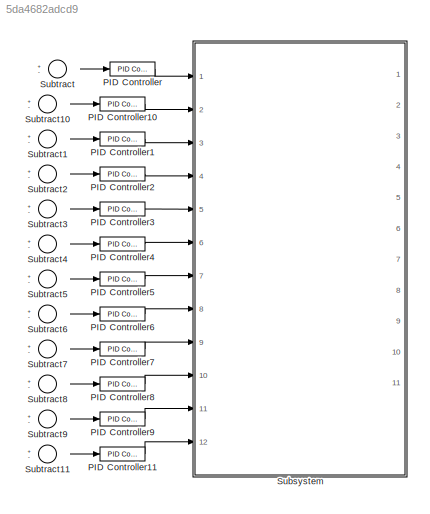
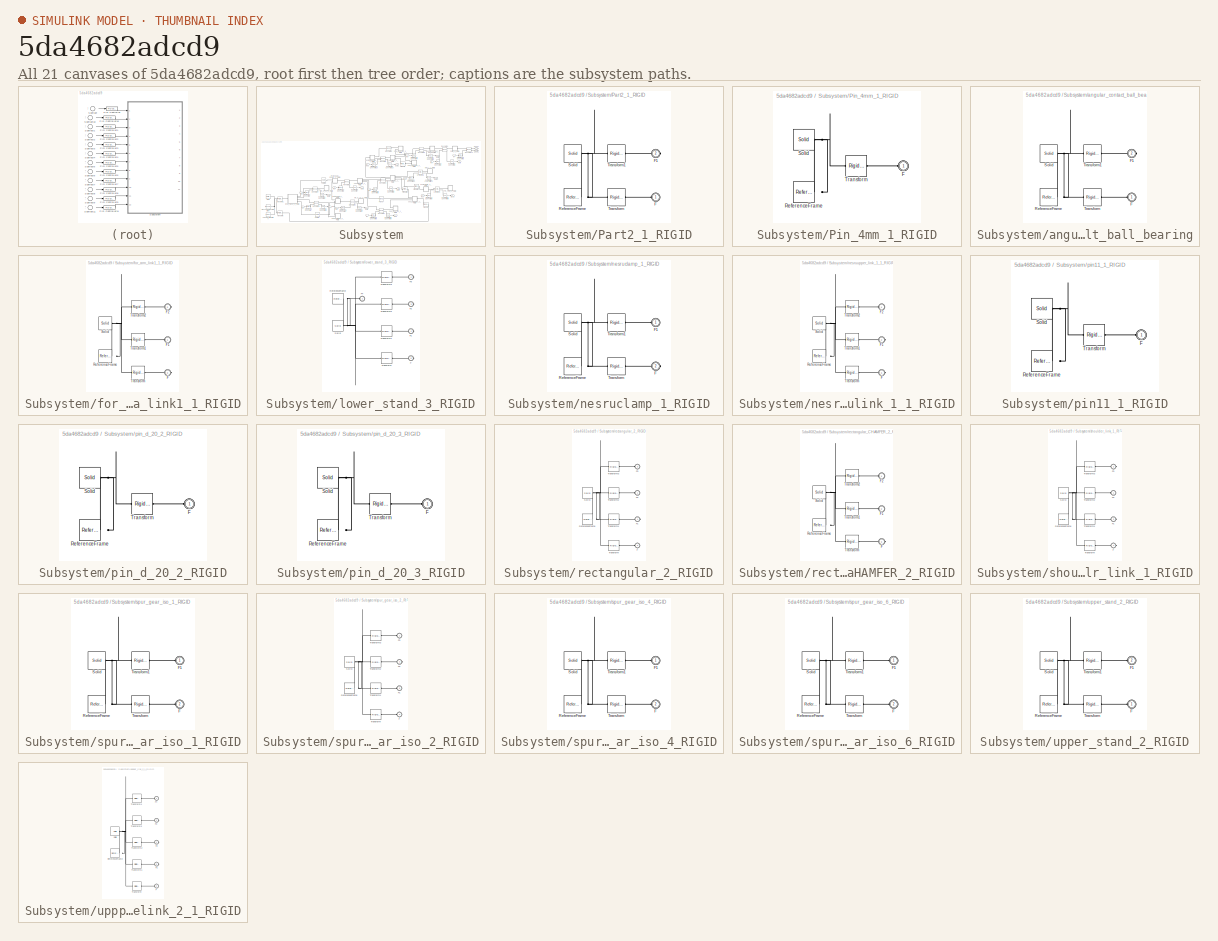
[diagram: thumbnail index - all 21 canvases of the model, root first then tree order]
MODEL slx_5da4682adcd9
KIND model
CONFIG AbsTol = auto
CONFIG FixedStep = auto
CONFIG MaxStep = auto
CONFIG MinStep = auto
CONFIG RelTol = 1e-3
CONFIG SampleTimeConstraint = Unconstrained
CONFIG Solver = ode45
CONFIG SolverMode = Auto
CONFIG SolverName = ode45
CONFIG StartTime = 0.0
CONFIG StopTime = 10.0
WORKSPACE source: external: MATLAB File  (data not in archive)
BLOCK [Reference] PID Controller  REF=simulink/Continuous/PID Controller
  Ports = [1, 1]
  SourceBlock = simulink/Continuous/PID Controller
  SourceType = PID 1dof
BLOCK [Reference] PID Controller1  REF=simulink/Continuous/PID Controller
  Ports = [1, 1]
  SourceBlock = simulink/Continuous/PID Controller
  SourceType = PID 1dof
BLOCK [Reference] PID Controller10  REF=simulink/Continuous/PID Controller
  Ports = [1, 1]
  SourceBlock = simulink/Continuous/PID Controller
  SourceType = PID 1dof
BLOCK [Reference] PID Controller11  REF=simulink/Continuous/PID Controller
  Ports = [1, 1]
  SourceBlock = simulink/Continuous/PID Controller
  SourceType = PID 1dof
BLOCK [Reference] PID Controller2  REF=simulink/Continuous/PID Controller
  Ports = [1, 1]
  SourceBlock = simulink/Continuous/PID Controller
  SourceType = PID 1dof
BLOCK [Reference] PID Controller3  REF=simulink/Continuous/PID Controller
  Ports = [1, 1]
  SourceBlock = simulink/Continuous/PID Controller
  SourceType = PID 1dof
BLOCK [Reference] PID Controller4  REF=simulink/Continuous/PID Controller
  Ports = [1, 1]
  SourceBlock = simulink/Continuous/PID Controller
  SourceType = PID 1dof
BLOCK [Reference] PID Controller5  REF=simulink/Continuous/PID Controller
  Ports = [1, 1]
  SourceBlock = simulink/Continuous/PID Controller
  SourceType = PID 1dof
BLOCK [Reference] PID Controller6  REF=simulink/Continuous/PID Controller
  Ports = [1, 1]
  SourceBlock = simulink/Continuous/PID Controller
  SourceType = PID 1dof
BLOCK [Reference] PID Controller7  REF=simulink/Continuous/PID Controller
  Ports = [1, 1]
  SourceBlock = simulink/Continuous/PID Controller
  SourceType = PID 1dof
BLOCK [Reference] PID Controller8  REF=simulink/Continuous/PID Controller
  Ports = [1, 1]
  SourceBlock = simulink/Continuous/PID Controller
  SourceType = PID 1dof
BLOCK [Reference] PID Controller9  REF=simulink/Continuous/PID Controller
  Ports = [1, 1]
  SourceBlock = simulink/Continuous/PID Controller
  SourceType = PID 1dof
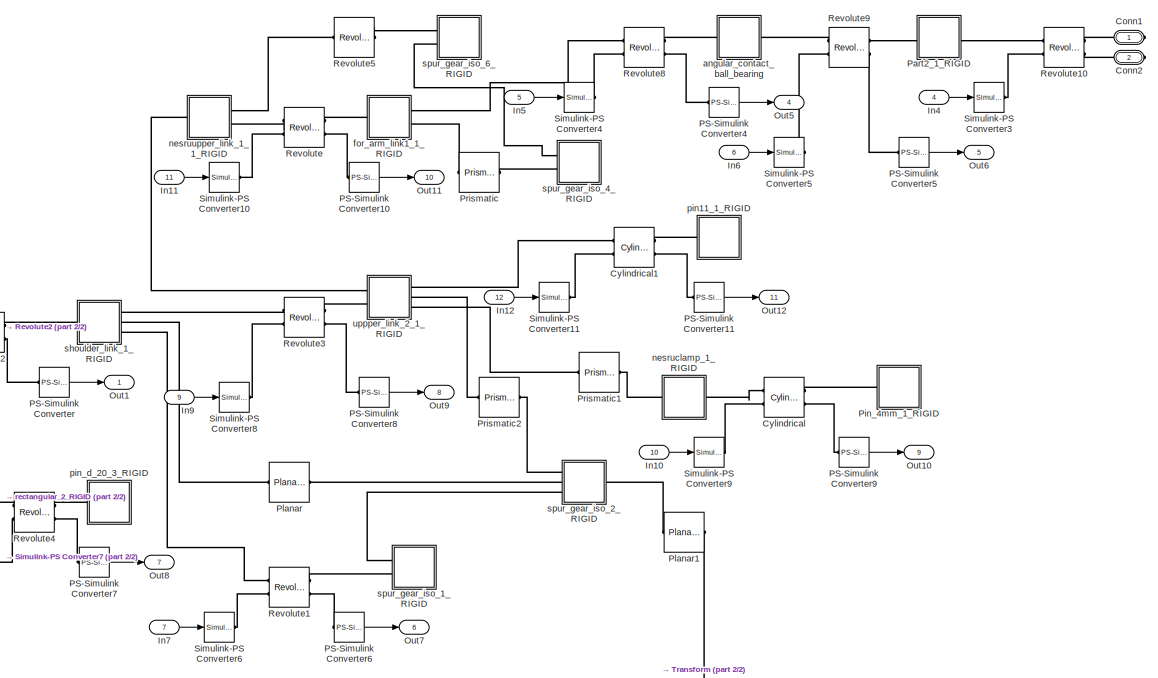
[diagram: Subsystem - part 1/2, right side, full height]
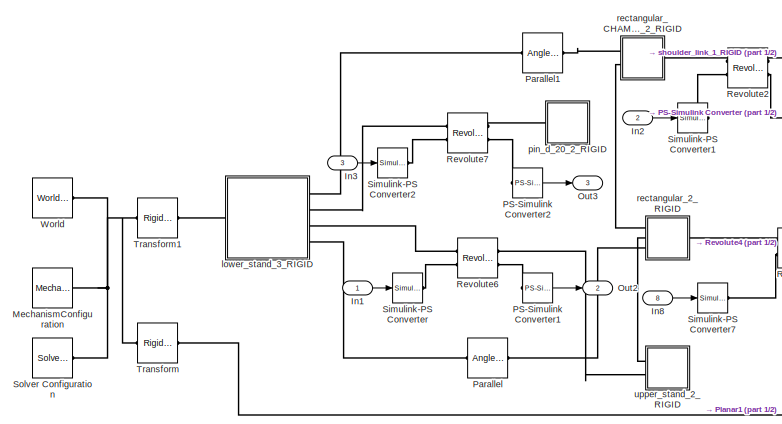
[diagram: Subsystem - part 2/2, bottom left region]
BLOCK [SubSystem] Subsystem
  Ports = [12, 11, 0, 0, 0, 0, 2]
  RequestExecContextInheritance = off
  Variant = off
BLOCK [PMIOPort] Subsystem/Conn1
  Port = 1
  Side = Right
BLOCK [PMIOPort] Subsystem/Conn2
  Port = 2
  Side = Right
BLOCK [Reference] Subsystem/Cylindrical  REF=sm_lib/Joints/Cylindrical
Joint
  Ports = [0, 0, 0, 0, 0, 2, 2]
  SourceBlock = sm_lib/Joints/Cylindrical\nJoint
  SourceType = Cylindrical\nJoint
BLOCK [Reference] Subsystem/Cylindrical1  REF=sm_lib/Joints/Cylindrical
Joint
  Ports = [0, 0, 0, 0, 0, 2, 2]
  SourceBlock = sm_lib/Joints/Cylindrical\nJoint
  SourceType = Cylindrical\nJoint
BLOCK [Inport] Subsystem/In1
  IconDisplay = Port number
BLOCK [Inport] Subsystem/In10
  IconDisplay = Port number
  Port = 10
BLOCK [Inport] Subsystem/In11
  IconDisplay = Port number
  Port = 11
BLOCK [Inport] Subsystem/In12
  IconDisplay = Port number
  Port = 12
BLOCK [Inport] Subsystem/In2
  IconDisplay = Port number
  Port = 2
BLOCK [Inport] Subsystem/In3
  IconDisplay = Port number
  Port = 3
BLOCK [Inport] Subsystem/In4
  IconDisplay = Port number
  Port = 4
BLOCK [Inport] Subsystem/In5
  IconDisplay = Port number
  Port = 5
BLOCK [Inport] Subsystem/In6
  IconDisplay = Port number
  Port = 6
BLOCK [Inport] Subsystem/In7
  IconDisplay = Port number
  Port = 7
BLOCK [Inport] Subsystem/In8
  IconDisplay = Port number
  Port = 8
BLOCK [Inport] Subsystem/In9
  IconDisplay = Port number
  Port = 9
BLOCK [Reference] Subsystem/MechanismConfiguration  REF=sm_lib/Utilities/Mechanism
Configuration
  Ports = [0, 0, 0, 0, 0, 0, 1]
  SourceBlock = sm_lib/Utilities/Mechanism\nConfiguration
  SourceType = Mechanism\nConfiguration
BLOCK [Outport] Subsystem/Out1
  IconDisplay = Port number
BLOCK [Outport] Subsystem/Out10
  IconDisplay = Port number
  Port = 9
BLOCK [Outport] Subsystem/Out11
  IconDisplay = Port number
  Port = 10
BLOCK [Outport] Subsystem/Out12
  IconDisplay = Port number
  Port = 11
BLOCK [Outport] Subsystem/Out2
  IconDisplay = Port number
  Port = 2
BLOCK [Outport] Subsystem/Out3
  IconDisplay = Port number
  Port = 3
BLOCK [Outport] Subsystem/Out5
  IconDisplay = Port number
  Port = 4
BLOCK [Outport] Subsystem/Out6
  IconDisplay = Port number
  Port = 5
BLOCK [Outport] Subsystem/Out7
  IconDisplay = Port number
  Port = 6
BLOCK [Outport] Subsystem/Out8
  IconDisplay = Port number
  Port = 7
BLOCK [Outport] Subsystem/Out9
  IconDisplay = Port number
  Port = 8
BLOCK [Reference] Subsystem/PS-Simulink Converter  REF=nesl_utility/PS-Simulink
Converter
  Ports = [0, 1, 0, 0, 0, 1]
  SourceBlock = nesl_utility/PS-Simulink\nConverter
  SourceType = PS-Simulink\nConverter
BLOCK [Reference] Subsystem/PS-Simulink Converter1  REF=nesl_utility/PS-Simulink
Converter
  Ports = [0, 1, 0, 0, 0, 1]
  SourceBlock = nesl_utility/PS-Simulink\nConverter
  SourceType = PS-Simulink\nConverter
BLOCK [Reference] Subsystem/PS-Simulink Converter10  REF=nesl_utility/PS-Simulink
Converter
  Ports = [0, 1, 0, 0, 0, 1]
  SourceBlock = nesl_utility/PS-Simulink\nConverter
  SourceType = PS-Simulink\nConverter
BLOCK [Reference] Subsystem/PS-Simulink Converter11  REF=nesl_utility/PS-Simulink
Converter
  Ports = [0, 1, 0, 0, 0, 1]
  SourceBlock = nesl_utility/PS-Simulink\nConverter
  SourceType = PS-Simulink\nConverter
BLOCK [Reference] Subsystem/PS-Simulink Converter2  REF=nesl_utility/PS-Simulink
Converter
  Ports = [0, 1, 0, 0, 0, 1]
  SourceBlock = nesl_utility/PS-Simulink\nConverter
  SourceType = PS-Simulink\nConverter
BLOCK [Reference] Subsystem/PS-Simulink Converter4  REF=nesl_utility/PS-Simulink
Converter
  Ports = [0, 1, 0, 0, 0, 1]
  SourceBlock = nesl_utility/PS-Simulink\nConverter
  SourceType = PS-Simulink\nConverter
BLOCK [Reference] Subsystem/PS-Simulink Converter5  REF=nesl_utility/PS-Simulink
Converter
  Ports = [0, 1, 0, 0, 0, 1]
  SourceBlock = nesl_utility/PS-Simulink\nConverter
  SourceType = PS-Simulink\nConverter
BLOCK [Reference] Subsystem/PS-Simulink Converter6  REF=nesl_utility/PS-Simulink
Converter
  Ports = [0, 1, 0, 0, 0, 1]
  SourceBlock = nesl_utility/PS-Simulink\nConverter
  SourceType = PS-Simulink\nConverter
BLOCK [Reference] Subsystem/PS-Simulink Converter7  REF=nesl_utility/PS-Simulink
Converter
  Ports = [0, 1, 0, 0, 0, 1]
  SourceBlock = nesl_utility/PS-Simulink\nConverter
  SourceType = PS-Simulink\nConverter
BLOCK [Reference] Subsystem/PS-Simulink Converter8  REF=nesl_utility/PS-Simulink
Converter
  Ports = [0, 1, 0, 0, 0, 1]
  SourceBlock = nesl_utility/PS-Simulink\nConverter
  SourceType = PS-Simulink\nConverter
BLOCK [Reference] Subsystem/PS-Simulink Converter9  REF=nesl_utility/PS-Simulink
Converter
  Ports = [0, 1, 0, 0, 0, 1]
  SourceBlock = nesl_utility/PS-Simulink\nConverter
  SourceType = PS-Simulink\nConverter
BLOCK [Reference] Subsystem/Parallel  REF=sm_lib/Constraints/Angle
Constraint
  Ports = [0, 0, 0, 0, 0, 1, 1]
  SourceBlock = sm_lib/Constraints/Angle\nConstraint
  SourceType = Angle\nConstraint
BLOCK [Reference] Subsystem/Parallel1  REF=sm_lib/Constraints/Angle
Constraint
  Ports = [0, 0, 0, 0, 0, 1, 1]
  SourceBlock = sm_lib/Constraints/Angle\nConstraint
  SourceType = Angle\nConstraint
BLOCK [SubSystem] Subsystem/Part2_1_RIGID
  Ports = [0, 0, 0, 0, 0, 1, 1]
  RequestExecContextInheritance = off
  Variant = off
BLOCK [PMIOPort] Subsystem/Part2_1_RIGID/F
  Port = 1
  Side = Left
BLOCK [PMIOPort] Subsystem/Part2_1_RIGID/F1
  Port = 2
  Side = Right
BLOCK [Reference] Subsystem/Part2_1_RIGID/ReferenceFrame  REF=sm_lib/Frames and
Transforms/Reference
Frame
  Ports = [0, 0, 0, 0, 0, 0, 1]
  SourceBlock = sm_lib/Frames and\nTransforms/Reference\nFrame
  SourceType = Reference\nFrame
BLOCK [Reference] Subsystem/Part2_1_RIGID/Solid  REF=sm_lib/Body Elements/Solid
  Ports = [0, 0, 0, 0, 0, 0, 1]
  SourceBlock = sm_lib/Body Elements/Solid
  SourceType = Solid
BLOCK [Reference] Subsystem/Part2_1_RIGID/Transform  REF=sm_lib/Frames and
Transforms/Rigid
Transform
  Ports = [0, 0, 0, 0, 0, 1, 1]
  SourceBlock = sm_lib/Frames and\nTransforms/Rigid\nTransform
  SourceType = Rigid\nTransform
BLOCK [Reference] Subsystem/Part2_1_RIGID/Transform1  REF=sm_lib/Frames and
Transforms/Rigid
Transform
  Ports = [0, 0, 0, 0, 0, 1, 1]
  SourceBlock = sm_lib/Frames and\nTransforms/Rigid\nTransform
  SourceType = Rigid\nTransform
BLOCK [SubSystem] Subsystem/Pin_4mm_1_RIGID
  Ports = [0, 0, 0, 0, 0, 1]
  RequestExecContextInheritance = off
  Variant = off
BLOCK [PMIOPort] Subsystem/Pin_4mm_1_RIGID/F
  Port = 1
  Side = Left
BLOCK [Reference] Subsystem/Pin_4mm_1_RIGID/ReferenceFrame  REF=sm_lib/Frames and
Transforms/Reference
Frame
  Ports = [0, 0, 0, 0, 0, 0, 1]
  SourceBlock = sm_lib/Frames and\nTransforms/Reference\nFrame
  SourceType = Reference\nFrame
BLOCK [Reference] Subsystem/Pin_4mm_1_RIGID/Solid  REF=sm_lib/Body Elements/Solid
  Ports = [0, 0, 0, 0, 0, 0, 1]
  SourceBlock = sm_lib/Body Elements/Solid
  SourceType = Solid
BLOCK [Reference] Subsystem/Pin_4mm_1_RIGID/Transform  REF=sm_lib/Frames and
Transforms/Rigid
Transform
  Ports = [0, 0, 0, 0, 0, 1, 1]
  SourceBlock = sm_lib/Frames and\nTransforms/Rigid\nTransform
  SourceType = Rigid\nTransform
BLOCK [Reference] Subsystem/Planar  REF=sm_lib/Joints/Planar Joint
  Ports = [0, 0, 0, 0, 0, 1, 1]
  SourceBlock = sm_lib/Joints/Planar Joint
  SourceType = Planar Joint
BLOCK [Reference] Subsystem/Planar1  REF=sm_lib/Joints/Planar Joint
  Ports = [0, 0, 0, 0, 0, 1, 1]
  SourceBlock = sm_lib/Joints/Planar Joint
  SourceType = Planar Joint
BLOCK [Reference] Subsystem/Prismatic  REF=sm_lib/Joints/Prismatic
Joint
  Ports = [0, 0, 0, 0, 0, 1, 1]
  SourceBlock = sm_lib/Joints/Prismatic\nJoint
  SourceType = Prismatic\nJoint
BLOCK [Reference] Subsystem/Prismatic1  REF=sm_lib/Joints/Prismatic
Joint
  Ports = [0, 0, 0, 0, 0, 1, 1]
  SourceBlock = sm_lib/Joints/Prismatic\nJoint
  SourceType = Prismatic\nJoint
BLOCK [Reference] Subsystem/Prismatic2  REF=sm_lib/Joints/Prismatic
Joint
  Ports = [0, 0, 0, 0, 0, 1, 1]
  SourceBlock = sm_lib/Joints/Prismatic\nJoint
  SourceType = Prismatic\nJoint
BLOCK [Reference] Subsystem/Revolute  REF=sm_lib/Joints/Revolute Joint
  Ports = [0, 0, 0, 0, 0, 2, 2]
  SourceBlock = sm_lib/Joints/Revolute Joint
  SourceType = Revolute Joint
BLOCK [Reference] Subsystem/Revolute1  REF=sm_lib/Joints/Revolute Joint
  Ports = [0, 0, 0, 0, 0, 2, 2]
  SourceBlock = sm_lib/Joints/Revolute Joint
  SourceType = Revolute Joint
BLOCK [Reference] Subsystem/Revolute10  REF=sm_lib/Joints/Revolute Joint
  Ports = [0, 0, 0, 0, 0, 2, 2]
  SourceBlock = sm_lib/Joints/Revolute Joint
  SourceType = Revolute Joint
BLOCK [Reference] Subsystem/Revolute2  REF=sm_lib/Joints/Revolute Joint
  Ports = [0, 0, 0, 0, 0, 2, 2]
  SourceBlock = sm_lib/Joints/Revolute Joint
  SourceType = Revolute Joint
BLOCK [Reference] Subsystem/Revolute3  REF=sm_lib/Joints/Revolute Joint
  Ports = [0, 0, 0, 0, 0, 2, 2]
  SourceBlock = sm_lib/Joints/Revolute Joint
  SourceType = Revolute Joint
BLOCK [Reference] Subsystem/Revolute4  REF=sm_lib/Joints/Revolute Joint
  Ports = [0, 0, 0, 0, 0, 2, 2]
  SourceBlock = sm_lib/Joints/Revolute Joint
  SourceType = Revolute Joint
BLOCK [Reference] Subsystem/Revolute5  REF=sm_lib/Joints/Revolute Joint
  Ports = [0, 0, 0, 0, 0, 1, 1]
  SourceBlock = sm_lib/Joints/Revolute Joint
  SourceType = Revolute Joint
BLOCK [Reference] Subsystem/Revolute6  REF=sm_lib/Joints/Revolute Joint
  Ports = [0, 0, 0, 0, 0, 2, 2]
  SourceBlock = sm_lib/Joints/Revolute Joint
  SourceType = Revolute Joint
BLOCK [Reference] Subsystem/Revolute7  REF=sm_lib/Joints/Revolute Joint
  Ports = [0, 0, 0, 0, 0, 2, 2]
  SourceBlock = sm_lib/Joints/Revolute Joint
  SourceType = Revolute Joint
BLOCK [Reference] Subsystem/Revolute8  REF=sm_lib/Joints/Revolute Joint
  Ports = [0, 0, 0, 0, 0, 2, 2]
  SourceBlock = sm_lib/Joints/Revolute Joint
  SourceType = Revolute Joint
BLOCK [Reference] Subsystem/Revolute9  REF=sm_lib/Joints/Revolute Joint
  Ports = [0, 0, 0, 0, 0, 2, 2]
  SourceBlock = sm_lib/Joints/Revolute Joint
  SourceType = Revolute Joint
BLOCK [Reference] Subsystem/Simulink-PS Converter  REF=nesl_utility/Simulink-PS
Converter
  Ports = [1, 0, 0, 0, 0, 0, 1]
  SourceBlock = nesl_utility/Simulink-PS\nConverter
  SourceType = Simulink-PS\nConverter
BLOCK [Reference] Subsystem/Simulink-PS Converter1  REF=nesl_utility/Simulink-PS
Converter
  Ports = [1, 0, 0, 0, 0, 0, 1]
  SourceBlock = nesl_utility/Simulink-PS\nConverter
  SourceType = Simulink-PS\nConverter
BLOCK [Reference] Subsystem/Simulink-PS Converter10  REF=nesl_utility/Simulink-PS
Converter
  Ports = [1, 0, 0, 0, 0, 0, 1]
  SourceBlock = nesl_utility/Simulink-PS\nConverter
  SourceType = Simulink-PS\nConverter
BLOCK [Reference] Subsystem/Simulink-PS Converter11  REF=nesl_utility/Simulink-PS
Converter
  Ports = [1, 0, 0, 0, 0, 0, 1]
  SourceBlock = nesl_utility/Simulink-PS\nConverter
  SourceType = Simulink-PS\nConverter
BLOCK [Reference] Subsystem/Simulink-PS Converter2  REF=nesl_utility/Simulink-PS
Converter
  Ports = [1, 0, 0, 0, 0, 0, 1]
  SourceBlock = nesl_utility/Simulink-PS\nConverter
  SourceType = Simulink-PS\nConverter
BLOCK [Reference] Subsystem/Simulink-PS Converter3  REF=nesl_utility/Simulink-PS
Converter
  Ports = [1, 0, 0, 0, 0, 0, 1]
  SourceBlock = nesl_utility/Simulink-PS\nConverter
  SourceType = Simulink-PS\nConverter
BLOCK [Reference] Subsystem/Simulink-PS Converter4  REF=nesl_utility/Simulink-PS
Converter
  Ports = [1, 0, 0, 0, 0, 0, 1]
  SourceBlock = nesl_utility/Simulink-PS\nConverter
  SourceType = Simulink-PS\nConverter
BLOCK [Reference] Subsystem/Simulink-PS Converter5  REF=nesl_utility/Simulink-PS
Converter
  Ports = [1, 0, 0, 0, 0, 0, 1]
  SourceBlock = nesl_utility/Simulink-PS\nConverter
  SourceType = Simulink-PS\nConverter
BLOCK [Reference] Subsystem/Simulink-PS Converter6  REF=nesl_utility/Simulink-PS
Converter
  Ports = [1, 0, 0, 0, 0, 0, 1]
  SourceBlock = nesl_utility/Simulink-PS\nConverter
  SourceType = Simulink-PS\nConverter
BLOCK [Reference] Subsystem/Simulink-PS Converter7  REF=nesl_utility/Simulink-PS
Converter
  Ports = [1, 0, 0, 0, 0, 0, 1]
  SourceBlock = nesl_utility/Simulink-PS\nConverter
  SourceType = Simulink-PS\nConverter
BLOCK [Reference] Subsystem/Simulink-PS Converter8  REF=nesl_utility/Simulink-PS
Converter
  Ports = [1, 0, 0, 0, 0, 0, 1]
  SourceBlock = nesl_utility/Simulink-PS\nConverter
  SourceType = Simulink-PS\nConverter
BLOCK [Reference] Subsystem/Simulink-PS Converter9  REF=nesl_utility/Simulink-PS
Converter
  Ports = [1, 0, 0, 0, 0, 0, 1]
  SourceBlock = nesl_utility/Simulink-PS\nConverter
  SourceType = Simulink-PS\nConverter
BLOCK [Reference] Subsystem/Solver Configuration  REF=nesl_utility/Solver
Configuration
  Ports = [0, 0, 0, 0, 0, 0, 1]
  SourceBlock = nesl_utility/Solver\nConfiguration
  SourceType = Solver\nConfiguration
BLOCK [Reference] Subsystem/Transform  REF=sm_lib/Frames and
Transforms/Rigid
Transform
  Ports = [0, 0, 0, 0, 0, 1, 1]
  SourceBlock = sm_lib/Frames and\nTransforms/Rigid\nTransform
  SourceType = Rigid\nTransform
BLOCK [Reference] Subsystem/Transform1  REF=sm_lib/Frames and
Transforms/Rigid
Transform
  Ports = [0, 0, 0, 0, 0, 1, 1]
  SourceBlock = sm_lib/Frames and\nTransforms/Rigid\nTransform
  SourceType = Rigid\nTransform
BLOCK [Reference] Subsystem/World  REF=sm_lib/Frames and
Transforms/World Frame
  Ports = [0, 0, 0, 0, 0, 0, 1]
  SourceBlock = sm_lib/Frames and\nTransforms/World Frame
  SourceType = World Frame
BLOCK [SubSystem] Subsystem/angular_contact_ball_bearing
  Ports = [0, 0, 0, 0, 0, 1, 1]
  RequestExecContextInheritance = off
  Variant = off
BLOCK [PMIOPort] Subsystem/angular_contact_ball_bearing/F
  Port = 1
  Side = Left
BLOCK [PMIOPort] Subsystem/angular_contact_ball_bearing/F1
  Port = 2
  Side = Right
BLOCK [Reference] Subsystem/angular_contact_ball_bearing/ReferenceFrame  REF=sm_lib/Frames and
Transforms/Reference
Frame
  Ports = [0, 0, 0, 0, 0, 0, 1]
  SourceBlock = sm_lib/Frames and\nTransforms/Reference\nFrame
  SourceType = Reference\nFrame
BLOCK [Reference] Subsystem/angular_contact_ball_bearing/Solid  REF=sm_lib/Body Elements/Solid
  Ports = [0, 0, 0, 0, 0, 0, 1]
  SourceBlock = sm_lib/Body Elements/Solid
  SourceType = Solid
BLOCK [Reference] Subsystem/angular_contact_ball_bearing/Transform  REF=sm_lib/Frames and
Transforms/Rigid
Transform
  Ports = [0, 0, 0, 0, 0, 1, 1]
  SourceBlock = sm_lib/Frames and\nTransforms/Rigid\nTransform
  SourceType = Rigid\nTransform
BLOCK [Reference] Subsystem/angular_contact_ball_bearing/Transform1  REF=sm_lib/Frames and
Transforms/Rigid
Transform
  Ports = [0, 0, 0, 0, 0, 1, 1]
  SourceBlock = sm_lib/Frames and\nTransforms/Rigid\nTransform
  SourceType = Rigid\nTransform
BLOCK [SubSystem] Subsystem/for_arm_link1_1_RIGID
  Ports = [0, 0, 0, 0, 0, 1, 2]
  RequestExecContextInheritance = off
  Variant = off
BLOCK [PMIOPort] Subsystem/for_arm_link1_1_RIGID/F
  Port = 3
  Side = Right
BLOCK [PMIOPort] Subsystem/for_arm_link1_1_RIGID/F1
  Port = 1
  Side = Left
BLOCK [PMIOPort] Subsystem/for_arm_link1_1_RIGID/F2
  Port = 2
  Side = Right
BLOCK [Reference] Subsystem/for_arm_link1_1_RIGID/ReferenceFrame  REF=sm_lib/Frames and
Transforms/Reference
Frame
  Ports = [0, 0, 0, 0, 0, 0, 1]
  SourceBlock = sm_lib/Frames and\nTransforms/Reference\nFrame
  SourceType = Reference\nFrame
BLOCK [Reference] Subsystem/for_arm_link1_1_RIGID/Solid  REF=sm_lib/Body Elements/Solid
  Ports = [0, 0, 0, 0, 0, 0, 1]
  SourceBlock = sm_lib/Body Elements/Solid
  SourceType = Solid
BLOCK [Reference] Subsystem/for_arm_link1_1_RIGID/Transform  REF=sm_lib/Frames and
Transforms/Rigid
Transform
  Ports = [0, 0, 0, 0, 0, 1, 1]
  SourceBlock = sm_lib/Frames and\nTransforms/Rigid\nTransform
  SourceType = Rigid\nTransform
BLOCK [Reference] Subsystem/for_arm_link1_1_RIGID/Transform1  REF=sm_lib/Frames and
Transforms/Rigid
Transform
  Ports = [0, 0, 0, 0, 0, 1, 1]
  SourceBlock = sm_lib/Frames and\nTransforms/Rigid\nTransform
  SourceType = Rigid\nTransform
BLOCK [Reference] Subsystem/for_arm_link1_1_RIGID/Transform2  REF=sm_lib/Frames and
Transforms/Rigid
Transform
  Ports = [0, 0, 0, 0, 0, 1, 1]
  SourceBlock = sm_lib/Frames and\nTransforms/Rigid\nTransform
  SourceType = Rigid\nTransform
BLOCK [SubSystem] Subsystem/lower_stand_3_RIGID
  Ports = [0, 0, 0, 0, 0, 1, 4]
  RequestExecContextInheritance = off
  Variant = off
BLOCK [PMIOPort] Subsystem/lower_stand_3_RIGID/F
  Port = 5
  Side = Right
BLOCK [PMIOPort] Subsystem/lower_stand_3_RIGID/F1
  Port = 4
  Side = Right
BLOCK [PMIOPort] Subsystem/lower_stand_3_RIGID/F2
  Port = 3
  Side = Right
BLOCK [PMIOPort] Subsystem/lower_stand_3_RIGID/F3
  Port = 2
  Side = Right
BLOCK [PMIOPort] Subsystem/lower_stand_3_RIGID/F4
  Port = 1
  Side = Left
BLOCK [Reference] Subsystem/lower_stand_3_RIGID/ReferenceFrame  REF=sm_lib/Frames and
Transforms/Reference
Frame
  Ports = [0, 0, 0, 0, 0, 0, 1]
  SourceBlock = sm_lib/Frames and\nTransforms/Reference\nFrame
  SourceType = Reference\nFrame
BLOCK [Reference] Subsystem/lower_stand_3_RIGID/Solid  REF=sm_lib/Body Elements/Solid
  Ports = [0, 0, 0, 0, 0, 0, 1]
  SourceBlock = sm_lib/Body Elements/Solid
  SourceType = Solid
BLOCK [Reference] Subsystem/lower_stand_3_RIGID/Transform  REF=sm_lib/Frames and
Transforms/Rigid
Transform
  Ports = [0, 0, 0, 0, 0, 1, 1]
  SourceBlock = sm_lib/Frames and\nTransforms/Rigid\nTransform
  SourceType = Rigid\nTransform
BLOCK [Reference] Subsystem/lower_stand_3_RIGID/Transform1  REF=sm_lib/Frames and
Transforms/Rigid
Transform
  Ports = [0, 0, 0, 0, 0, 1, 1]
  SourceBlock = sm_lib/Frames and\nTransforms/Rigid\nTransform
  SourceType = Rigid\nTransform
BLOCK [Reference] Subsystem/lower_stand_3_RIGID/Transform2  REF=sm_lib/Frames and
Transforms/Rigid
Transform
  Ports = [0, 0, 0, 0, 0, 1, 1]
  SourceBlock = sm_lib/Frames and\nTransforms/Rigid\nTransform
  SourceType = Rigid\nTransform
BLOCK [Reference] Subsystem/lower_stand_3_RIGID/Transform3  REF=sm_lib/Frames and
Transforms/Rigid
Transform
  Ports = [0, 0, 0, 0, 0, 1, 1]
  SourceBlock = sm_lib/Frames and\nTransforms/Rigid\nTransform
  SourceType = Rigid\nTransform
BLOCK [SubSystem] Subsystem/nesruclamp_1_RIGID
  Ports = [0, 0, 0, 0, 0, 1, 1]
  RequestExecContextInheritance = off
  Variant = off
BLOCK [PMIOPort] Subsystem/nesruclamp_1_RIGID/F
  Port = 2
  Side = Right
BLOCK [PMIOPort] Subsystem/nesruclamp_1_RIGID/F1
  Port = 1
  Side = Left
BLOCK [Reference] Subsystem/nesruclamp_1_RIGID/ReferenceFrame  REF=sm_lib/Frames and
Transforms/Reference
Frame
  Ports = [0, 0, 0, 0, 0, 0, 1]
  SourceBlock = sm_lib/Frames and\nTransforms/Reference\nFrame
  SourceType = Reference\nFrame
BLOCK [Reference] Subsystem/nesruclamp_1_RIGID/Solid  REF=sm_lib/Body Elements/Solid
  Ports = [0, 0, 0, 0, 0, 0, 1]
  SourceBlock = sm_lib/Body Elements/Solid
  SourceType = Solid
BLOCK [Reference] Subsystem/nesruclamp_1_RIGID/Transform  REF=sm_lib/Frames and
Transforms/Rigid
Transform
  Ports = [0, 0, 0, 0, 0, 1, 1]
  SourceBlock = sm_lib/Frames and\nTransforms/Rigid\nTransform
  SourceType = Rigid\nTransform
BLOCK [Reference] Subsystem/nesruclamp_1_RIGID/Transform1  REF=sm_lib/Frames and
Transforms/Rigid
Transform
  Ports = [0, 0, 0, 0, 0, 1, 1]
  SourceBlock = sm_lib/Frames and\nTransforms/Rigid\nTransform
  SourceType = Rigid\nTransform
BLOCK [SubSystem] Subsystem/nesruupper_link_1_1_RIGID
  Ports = [0, 0, 0, 0, 0, 1, 2]
  RequestExecContextInheritance = off
  Variant = off
BLOCK [PMIOPort] Subsystem/nesruupper_link_1_1_RIGID/F
  Port = 3
  Side = Right
BLOCK [PMIOPort] Subsystem/nesruupper_link_1_1_RIGID/F1
  Port = 2
  Side = Right
BLOCK [PMIOPort] Subsystem/nesruupper_link_1_1_RIGID/F2
  Port = 1
  Side = Left
BLOCK [Reference] Subsystem/nesruupper_link_1_1_RIGID/ReferenceFrame  REF=sm_lib/Frames and
Transforms/Reference
Frame
  Ports = [0, 0, 0, 0, 0, 0, 1]
  SourceBlock = sm_lib/Frames and\nTransforms/Reference\nFrame
  SourceType = Reference\nFrame
BLOCK [Reference] Subsystem/nesruupper_link_1_1_RIGID/Solid  REF=sm_lib/Body Elements/Solid
  Ports = [0, 0, 0, 0, 0, 0, 1]
  SourceBlock = sm_lib/Body Elements/Solid
  SourceType = Solid
BLOCK [Reference] Subsystem/nesruupper_link_1_1_RIGID/Transform  REF=sm_lib/Frames and
Transforms/Rigid
Transform
  Ports = [0, 0, 0, 0, 0, 1, 1]
  SourceBlock = sm_lib/Frames and\nTransforms/Rigid\nTransform
  SourceType = Rigid\nTransform
BLOCK [Reference] Subsystem/nesruupper_link_1_1_RIGID/Transform1  REF=sm_lib/Frames and
Transforms/Rigid
Transform
  Ports = [0, 0, 0, 0, 0, 1, 1]
  SourceBlock = sm_lib/Frames and\nTransforms/Rigid\nTransform
  SourceType = Rigid\nTransform
BLOCK [Reference] Subsystem/nesruupper_link_1_1_RIGID/Transform2  REF=sm_lib/Frames and
Transforms/Rigid
Transform
  Ports = [0, 0, 0, 0, 0, 1, 1]
  SourceBlock = sm_lib/Frames and\nTransforms/Rigid\nTransform
  SourceType = Rigid\nTransform
BLOCK [SubSystem] Subsystem/pin11_1_RIGID
  Ports = [0, 0, 0, 0, 0, 1]
  RequestExecContextInheritance = off
  Variant = off
BLOCK [PMIOPort] Subsystem/pin11_1_RIGID/F
  Port = 1
  Side = Left
BLOCK [Reference] Subsystem/pin11_1_RIGID/ReferenceFrame  REF=sm_lib/Frames and
Transforms/Reference
Frame
  Ports = [0, 0, 0, 0, 0, 0, 1]
  SourceBlock = sm_lib/Frames and\nTransforms/Reference\nFrame
  SourceType = Reference\nFrame
BLOCK [Reference] Subsystem/pin11_1_RIGID/Solid  REF=sm_lib/Body Elements/Solid
  Ports = [0, 0, 0, 0, 0, 0, 1]
  SourceBlock = sm_lib/Body Elements/Solid
  SourceType = Solid
BLOCK [Reference] Subsystem/pin11_1_RIGID/Transform  REF=sm_lib/Frames and
Transforms/Rigid
Transform
  Ports = [0, 0, 0, 0, 0, 1, 1]
  SourceBlock = sm_lib/Frames and\nTransforms/Rigid\nTransform
  SourceType = Rigid\nTransform
BLOCK [SubSystem] Subsystem/pin_d_20_2_RIGID
  Ports = [0, 0, 0, 0, 0, 1]
  RequestExecContextInheritance = off
  Variant = off
BLOCK [PMIOPort] Subsystem/pin_d_20_2_RIGID/F
  Port = 1
  Side = Left
BLOCK [Reference] Subsystem/pin_d_20_2_RIGID/ReferenceFrame  REF=sm_lib/Frames and
Transforms/Reference
Frame
  Ports = [0, 0, 0, 0, 0, 0, 1]
  SourceBlock = sm_lib/Frames and\nTransforms/Reference\nFrame
  SourceType = Reference\nFrame
BLOCK [Reference] Subsystem/pin_d_20_2_RIGID/Solid  REF=sm_lib/Body Elements/Solid
  Ports = [0, 0, 0, 0, 0, 0, 1]
  SourceBlock = sm_lib/Body Elements/Solid
  SourceType = Solid
BLOCK [Reference] Subsystem/pin_d_20_2_RIGID/Transform  REF=sm_lib/Frames and
Transforms/Rigid
Transform
  Ports = [0, 0, 0, 0, 0, 1, 1]
  SourceBlock = sm_lib/Frames and\nTransforms/Rigid\nTransform
  SourceType = Rigid\nTransform
BLOCK [SubSystem] Subsystem/pin_d_20_3_RIGID
  Ports = [0, 0, 0, 0, 0, 1]
  RequestExecContextInheritance = off
  Variant = off
BLOCK [PMIOPort] Subsystem/pin_d_20_3_RIGID/F
  Port = 1
  Side = Left
BLOCK [Reference] Subsystem/pin_d_20_3_RIGID/ReferenceFrame  REF=sm_lib/Frames and
Transforms/Reference
Frame
  Ports = [0, 0, 0, 0, 0, 0, 1]
  SourceBlock = sm_lib/Frames and\nTransforms/Reference\nFrame
  SourceType = Reference\nFrame
BLOCK [Reference] Subsystem/pin_d_20_3_RIGID/Solid  REF=sm_lib/Body Elements/Solid
  Ports = [0, 0, 0, 0, 0, 0, 1]
  SourceBlock = sm_lib/Body Elements/Solid
  SourceType = Solid
BLOCK [Reference] Subsystem/pin_d_20_3_RIGID/Transform  REF=sm_lib/Frames and
Transforms/Rigid
Transform
  Ports = [0, 0, 0, 0, 0, 1, 1]
  SourceBlock = sm_lib/Frames and\nTransforms/Rigid\nTransform
  SourceType = Rigid\nTransform
BLOCK [SubSystem] Subsystem/rectangular_2_RIGID
  Ports = [0, 0, 0, 0, 0, 3, 1]
  RequestExecContextInheritance = off
  Variant = off
BLOCK [PMIOPort] Subsystem/rectangular_2_RIGID/F
  Port = 2
  Side = Left
BLOCK [PMIOPort] Subsystem/rectangular_2_RIGID/F1
  Port = 4
  Side = Right
BLOCK [PMIOPort] Subsystem/rectangular_2_RIGID/F2
  Port = 1
  Side = Left
BLOCK [PMIOPort] Subsystem/rectangular_2_RIGID/F3
  Port = 3
  Side = Left
BLOCK [Reference] Subsystem/rectangular_2_RIGID/ReferenceFrame  REF=sm_lib/Frames and
Transforms/Reference
Frame
  Ports = [0, 0, 0, 0, 0, 0, 1]
  SourceBlock = sm_lib/Frames and\nTransforms/Reference\nFrame
  SourceType = Reference\nFrame
BLOCK [Reference] Subsystem/rectangular_2_RIGID/Solid  REF=sm_lib/Body Elements/Solid
  Ports = [0, 0, 0, 0, 0, 0, 1]
  SourceBlock = sm_lib/Body Elements/Solid
  SourceType = Solid
BLOCK [Reference] Subsystem/rectangular_2_RIGID/Transform  REF=sm_lib/Frames and
Transforms/Rigid
Transform
  Ports = [0, 0, 0, 0, 0, 1, 1]
  SourceBlock = sm_lib/Frames and\nTransforms/Rigid\nTransform
  SourceType = Rigid\nTransform
BLOCK [Reference] Subsystem/rectangular_2_RIGID/Transform1  REF=sm_lib/Frames and
Transforms/Rigid
Transform
  Ports = [0, 0, 0, 0, 0, 1, 1]
  SourceBlock = sm_lib/Frames and\nTransforms/Rigid\nTransform
  SourceType = Rigid\nTransform
BLOCK [Reference] Subsystem/rectangular_2_RIGID/Transform2  REF=sm_lib/Frames and
Transforms/Rigid
Transform
  Ports = [0, 0, 0, 0, 0, 1, 1]
  SourceBlock = sm_lib/Frames and\nTransforms/Rigid\nTransform
  SourceType = Rigid\nTransform
BLOCK [Reference] Subsystem/rectangular_2_RIGID/Transform3  REF=sm_lib/Frames and
Transforms/Rigid
Transform
  Ports = [0, 0, 0, 0, 0, 1, 1]
  SourceBlock = sm_lib/Frames and\nTransforms/Rigid\nTransform
  SourceType = Rigid\nTransform
BLOCK [SubSystem] Subsystem/rectangular_CHAMFER_2_RIGID
  Ports = [0, 0, 0, 0, 0, 2, 1]
  RequestExecContextInheritance = off
  Variant = off
BLOCK [PMIOPort] Subsystem/rectangular_CHAMFER_2_RIGID/F
  Port = 3
  Side = Right
BLOCK [PMIOPort] Subsystem/rectangular_CHAMFER_2_RIGID/F1
  Port = 2
  Side = Left
BLOCK [PMIOPort] Subsystem/rectangular_CHAMFER_2_RIGID/F2
  Port = 1
  Side = Left
BLOCK [Reference] Subsystem/rectangular_CHAMFER_2_RIGID/ReferenceFrame  REF=sm_lib/Frames and
Transforms/Reference
Frame
  Ports = [0, 0, 0, 0, 0, 0, 1]
  SourceBlock = sm_lib/Frames and\nTransforms/Reference\nFrame
  SourceType = Reference\nFrame
BLOCK [Reference] Subsystem/rectangular_CHAMFER_2_RIGID/Solid  REF=sm_lib/Body Elements/Solid
  Ports = [0, 0, 0, 0, 0, 0, 1]
  SourceBlock = sm_lib/Body Elements/Solid
  SourceType = Solid
BLOCK [Reference] Subsystem/rectangular_CHAMFER_2_RIGID/Transform  REF=sm_lib/Frames and
Transforms/Rigid
Transform
  Ports = [0, 0, 0, 0, 0, 1, 1]
  SourceBlock = sm_lib/Frames and\nTransforms/Rigid\nTransform
  SourceType = Rigid\nTransform
BLOCK [Reference] Subsystem/rectangular_CHAMFER_2_RIGID/Transform1  REF=sm_lib/Frames and
Transforms/Rigid
Transform
  Ports = [0, 0, 0, 0, 0, 1, 1]
  SourceBlock = sm_lib/Frames and\nTransforms/Rigid\nTransform
  SourceType = Rigid\nTransform
BLOCK [Reference] Subsystem/rectangular_CHAMFER_2_RIGID/Transform2  REF=sm_lib/Frames and
Transforms/Rigid
Transform
  Ports = [0, 0, 0, 0, 0, 1, 1]
  SourceBlock = sm_lib/Frames and\nTransforms/Rigid\nTransform
  SourceType = Rigid\nTransform
BLOCK [SubSystem] Subsystem/shoulder_link_1_RIGID
  Ports = [0, 0, 0, 0, 0, 1, 3]
  RequestExecContextInheritance = off
  Variant = off
BLOCK [PMIOPort] Subsystem/shoulder_link_1_RIGID/F
  Port = 4
  Side = Right
BLOCK [PMIOPort] Subsystem/shoulder_link_1_RIGID/F1
  Port = 3
  Side = Right
BLOCK [PMIOPort] Subsystem/shoulder_link_1_RIGID/F2
  Port = 1
  Side = Left
BLOCK [PMIOPort] Subsystem/shoulder_link_1_RIGID/F3
  Port = 2
  Side = Right
BLOCK [Reference] Subsystem/shoulder_link_1_RIGID/ReferenceFrame  REF=sm_lib/Frames and
Transforms/Reference
Frame
  Ports = [0, 0, 0, 0, 0, 0, 1]
  SourceBlock = sm_lib/Frames and\nTransforms/Reference\nFrame
  SourceType = Reference\nFrame
BLOCK [Reference] Subsystem/shoulder_link_1_RIGID/Solid  REF=sm_lib/Body Elements/Solid
  Ports = [0, 0, 0, 0, 0, 0, 1]
  SourceBlock = sm_lib/Body Elements/Solid
  SourceType = Solid
BLOCK [Reference] Subsystem/shoulder_link_1_RIGID/Transform  REF=sm_lib/Frames and
Transforms/Rigid
Transform
  Ports = [0, 0, 0, 0, 0, 1, 1]
  SourceBlock = sm_lib/Frames and\nTransforms/Rigid\nTransform
  SourceType = Rigid\nTransform
BLOCK [Reference] Subsystem/shoulder_link_1_RIGID/Transform1  REF=sm_lib/Frames and
Transforms/Rigid
Transform
  Ports = [0, 0, 0, 0, 0, 1, 1]
  SourceBlock = sm_lib/Frames and\nTransforms/Rigid\nTransform
  SourceType = Rigid\nTransform
BLOCK [Reference] Subsystem/shoulder_link_1_RIGID/Transform2  REF=sm_lib/Frames and
Transforms/Rigid
Transform
  Ports = [0, 0, 0, 0, 0, 1, 1]
  SourceBlock = sm_lib/Frames and\nTransforms/Rigid\nTransform
  SourceType = Rigid\nTransform
BLOCK [Reference] Subsystem/shoulder_link_1_RIGID/Transform3  REF=sm_lib/Frames and
Transforms/Rigid
Transform
  Ports = [0, 0, 0, 0, 0, 1, 1]
  SourceBlock = sm_lib/Frames and\nTransforms/Rigid\nTransform
  SourceType = Rigid\nTransform
BLOCK [SubSystem] Subsystem/spur_gear_iso_1_RIGID
  Ports = [0, 0, 0, 0, 0, 2]
  RequestExecContextInheritance = off
  Variant = off
BLOCK [PMIOPort] Subsystem/spur_gear_iso_1_RIGID/F
  Port = 2
  Side = Left
BLOCK [PMIOPort] Subsystem/spur_gear_iso_1_RIGID/F1
  Port = 1
  Side = Left
BLOCK [Reference] Subsystem/spur_gear_iso_1_RIGID/ReferenceFrame  REF=sm_lib/Frames and
Transforms/Reference
Frame
  Ports = [0, 0, 0, 0, 0, 0, 1]
  SourceBlock = sm_lib/Frames and\nTransforms/Reference\nFrame
  SourceType = Reference\nFrame
BLOCK [Reference] Subsystem/spur_gear_iso_1_RIGID/Solid  REF=sm_lib/Body Elements/Solid
  Ports = [0, 0, 0, 0, 0, 0, 1]
  SourceBlock = sm_lib/Body Elements/Solid
  SourceType = Solid
BLOCK [Reference] Subsystem/spur_gear_iso_1_RIGID/Transform  REF=sm_lib/Frames and
Transforms/Rigid
Transform
  Ports = [0, 0, 0, 0, 0, 1, 1]
  SourceBlock = sm_lib/Frames and\nTransforms/Rigid\nTransform
  SourceType = Rigid\nTransform
BLOCK [Reference] Subsystem/spur_gear_iso_1_RIGID/Transform1  REF=sm_lib/Frames and
Transforms/Rigid
Transform
  Ports = [0, 0, 0, 0, 0, 1, 1]
  SourceBlock = sm_lib/Frames and\nTransforms/Rigid\nTransform
  SourceType = Rigid\nTransform
BLOCK [SubSystem] Subsystem/spur_gear_iso_2_RIGID
  Ports = [0, 0, 0, 0, 0, 3, 1]
  RequestExecContextInheritance = off
  Variant = off
BLOCK [PMIOPort] Subsystem/spur_gear_iso_2_RIGID/F
  Port = 2
  Side = Left
BLOCK [PMIOPort] Subsystem/spur_gear_iso_2_RIGID/F1
  Port = 3
  Side = Left
BLOCK [PMIOPort] Subsystem/spur_gear_iso_2_RIGID/F2
  Port = 4
  Side = Right
BLOCK [PMIOPort] Subsystem/spur_gear_iso_2_RIGID/F3
  Port = 1
  Side = Left
BLOCK [Reference] Subsystem/spur_gear_iso_2_RIGID/ReferenceFrame  REF=sm_lib/Frames and
Transforms/Reference
Frame
  Ports = [0, 0, 0, 0, 0, 0, 1]
  SourceBlock = sm_lib/Frames and\nTransforms/Reference\nFrame
  SourceType = Reference\nFrame
BLOCK [Reference] Subsystem/spur_gear_iso_2_RIGID/Solid  REF=sm_lib/Body Elements/Solid
  Ports = [0, 0, 0, 0, 0, 0, 1]
  SourceBlock = sm_lib/Body Elements/Solid
  SourceType = Solid
BLOCK [Reference] Subsystem/spur_gear_iso_2_RIGID/Transform  REF=sm_lib/Frames and
Transforms/Rigid
Transform
  Ports = [0, 0, 0, 0, 0, 1, 1]
  SourceBlock = sm_lib/Frames and\nTransforms/Rigid\nTransform
  SourceType = Rigid\nTransform
BLOCK [Reference] Subsystem/spur_gear_iso_2_RIGID/Transform1  REF=sm_lib/Frames and
Transforms/Rigid
Transform
  Ports = [0, 0, 0, 0, 0, 1, 1]
  SourceBlock = sm_lib/Frames and\nTransforms/Rigid\nTransform
  SourceType = Rigid\nTransform
BLOCK [Reference] Subsystem/spur_gear_iso_2_RIGID/Transform2  REF=sm_lib/Frames and
Transforms/Rigid
Transform
  Ports = [0, 0, 0, 0, 0, 1, 1]
  SourceBlock = sm_lib/Frames and\nTransforms/Rigid\nTransform
  SourceType = Rigid\nTransform
BLOCK [Reference] Subsystem/spur_gear_iso_2_RIGID/Transform3  REF=sm_lib/Frames and
Transforms/Rigid
Transform
  Ports = [0, 0, 0, 0, 0, 1, 1]
  SourceBlock = sm_lib/Frames and\nTransforms/Rigid\nTransform
  SourceType = Rigid\nTransform
BLOCK [SubSystem] Subsystem/spur_gear_iso_4_RIGID
  Ports = [0, 0, 0, 0, 0, 2]
  RequestExecContextInheritance = off
  Variant = off
BLOCK [PMIOPort] Subsystem/spur_gear_iso_4_RIGID/F
  Port = 2
  Side = Left
BLOCK [PMIOPort] Subsystem/spur_gear_iso_4_RIGID/F1
  Port = 1
  Side = Left
BLOCK [Reference] Subsystem/spur_gear_iso_4_RIGID/ReferenceFrame  REF=sm_lib/Frames and
Transforms/Reference
Frame
  Ports = [0, 0, 0, 0, 0, 0, 1]
  SourceBlock = sm_lib/Frames and\nTransforms/Reference\nFrame
  SourceType = Reference\nFrame
BLOCK [Reference] Subsystem/spur_gear_iso_4_RIGID/Solid  REF=sm_lib/Body Elements/Solid
  Ports = [0, 0, 0, 0, 0, 0, 1]
  SourceBlock = sm_lib/Body Elements/Solid
  SourceType = Solid
BLOCK [Reference] Subsystem/spur_gear_iso_4_RIGID/Transform  REF=sm_lib/Frames and
Transforms/Rigid
Transform
  Ports = [0, 0, 0, 0, 0, 1, 1]
  SourceBlock = sm_lib/Frames and\nTransforms/Rigid\nTransform
  SourceType = Rigid\nTransform
BLOCK [Reference] Subsystem/spur_gear_iso_4_RIGID/Transform1  REF=sm_lib/Frames and
Transforms/Rigid
Transform
  Ports = [0, 0, 0, 0, 0, 1, 1]
  SourceBlock = sm_lib/Frames and\nTransforms/Rigid\nTransform
  SourceType = Rigid\nTransform
BLOCK [SubSystem] Subsystem/spur_gear_iso_6_RIGID
  Ports = [0, 0, 0, 0, 0, 2]
  RequestExecContextInheritance = off
  Variant = off
BLOCK [PMIOPort] Subsystem/spur_gear_iso_6_RIGID/F
  Port = 2
  Side = Left
BLOCK [PMIOPort] Subsystem/spur_gear_iso_6_RIGID/F1
  Port = 1
  Side = Left
BLOCK [Reference] Subsystem/spur_gear_iso_6_RIGID/ReferenceFrame  REF=sm_lib/Frames and
Transforms/Reference
Frame
  Ports = [0, 0, 0, 0, 0, 0, 1]
  SourceBlock = sm_lib/Frames and\nTransforms/Reference\nFrame
  SourceType = Reference\nFrame
BLOCK [Reference] Subsystem/spur_gear_iso_6_RIGID/Solid  REF=sm_lib/Body Elements/Solid
  Ports = [0, 0, 0, 0, 0, 0, 1]
  SourceBlock = sm_lib/Body Elements/Solid
  SourceType = Solid
BLOCK [Reference] Subsystem/spur_gear_iso_6_RIGID/Transform  REF=sm_lib/Frames and
Transforms/Rigid
Transform
  Ports = [0, 0, 0, 0, 0, 1, 1]
  SourceBlock = sm_lib/Frames and\nTransforms/Rigid\nTransform
  SourceType = Rigid\nTransform
BLOCK [Reference] Subsystem/spur_gear_iso_6_RIGID/Transform1  REF=sm_lib/Frames and
Transforms/Rigid
Transform
  Ports = [0, 0, 0, 0, 0, 1, 1]
  SourceBlock = sm_lib/Frames and\nTransforms/Rigid\nTransform
  SourceType = Rigid\nTransform
BLOCK [SubSystem] Subsystem/upper_stand_2_RIGID
  Ports = [0, 0, 0, 0, 0, 2]
  RequestExecContextInheritance = off
  Variant = off
BLOCK [PMIOPort] Subsystem/upper_stand_2_RIGID/F
  Port = 1
  Side = Left
BLOCK [PMIOPort] Subsystem/upper_stand_2_RIGID/F1
  Port = 2
  Side = Left
BLOCK [Reference] Subsystem/upper_stand_2_RIGID/ReferenceFrame  REF=sm_lib/Frames and
Transforms/Reference
Frame
  Ports = [0, 0, 0, 0, 0, 0, 1]
  SourceBlock = sm_lib/Frames and\nTransforms/Reference\nFrame
  SourceType = Reference\nFrame
BLOCK [Reference] Subsystem/upper_stand_2_RIGID/Solid  REF=sm_lib/Body Elements/Solid
  Ports = [0, 0, 0, 0, 0, 0, 1]
  SourceBlock = sm_lib/Body Elements/Solid
  SourceType = Solid
BLOCK [Reference] Subsystem/upper_stand_2_RIGID/Transform  REF=sm_lib/Frames and
Transforms/Rigid
Transform
  Ports = [0, 0, 0, 0, 0, 1, 1]
  SourceBlock = sm_lib/Frames and\nTransforms/Rigid\nTransform
  SourceType = Rigid\nTransform
BLOCK [Reference] Subsystem/upper_stand_2_RIGID/Transform1  REF=sm_lib/Frames and
Transforms/Rigid
Transform
  Ports = [0, 0, 0, 0, 0, 1, 1]
  SourceBlock = sm_lib/Frames and\nTransforms/Rigid\nTransform
  SourceType = Rigid\nTransform
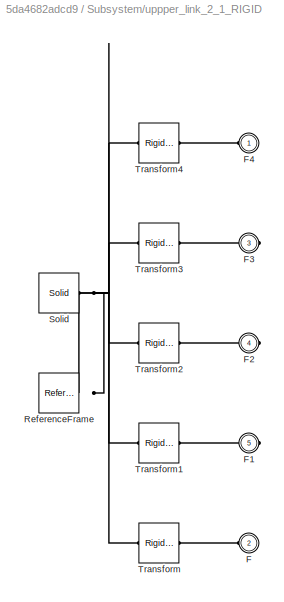
BLOCK [SubSystem] Subsystem/uppper_link_2_1_RIGID
  Ports = [0, 0, 0, 0, 0, 2, 3]
  RequestExecContextInheritance = off
  Variant = off
BLOCK [PMIOPort] Subsystem/uppper_link_2_1_RIGID/F
  Port = 2
  Side = Left
BLOCK [PMIOPort] Subsystem/uppper_link_2_1_RIGID/F1
  Port = 5
  Side = Right
BLOCK [PMIOPort] Subsystem/uppper_link_2_1_RIGID/F2
  Port = 4
  Side = Right
BLOCK [PMIOPort] Subsystem/uppper_link_2_1_RIGID/F3
  Port = 3
  Side = Right
BLOCK [PMIOPort] Subsystem/uppper_link_2_1_RIGID/F4
  Port = 1
  Side = Left
BLOCK [Reference] Subsystem/uppper_link_2_1_RIGID/ReferenceFrame  REF=sm_lib/Frames and
Transforms/Reference
Frame
  Ports = [0, 0, 0, 0, 0, 0, 1]
  SourceBlock = sm_lib/Frames and\nTransforms/Reference\nFrame
  SourceType = Reference\nFrame
BLOCK [Reference] Subsystem/uppper_link_2_1_RIGID/Solid  REF=sm_lib/Body Elements/Solid
  Ports = [0, 0, 0, 0, 0, 0, 1]
  SourceBlock = sm_lib/Body Elements/Solid
  SourceType = Solid
BLOCK [Reference] Subsystem/uppper_link_2_1_RIGID/Transform  REF=sm_lib/Frames and
Transforms/Rigid
Transform
  Ports = [0, 0, 0, 0, 0, 1, 1]
  SourceBlock = sm_lib/Frames and\nTransforms/Rigid\nTransform
  SourceType = Rigid\nTransform
BLOCK [Reference] Subsystem/uppper_link_2_1_RIGID/Transform1  REF=sm_lib/Frames and
Transforms/Rigid
Transform
  Ports = [0, 0, 0, 0, 0, 1, 1]
  SourceBlock = sm_lib/Frames and\nTransforms/Rigid\nTransform
  SourceType = Rigid\nTransform
BLOCK [Reference] Subsystem/uppper_link_2_1_RIGID/Transform2  REF=sm_lib/Frames and
Transforms/Rigid
Transform
  Ports = [0, 0, 0, 0, 0, 1, 1]
  SourceBlock = sm_lib/Frames and\nTransforms/Rigid\nTransform
  SourceType = Rigid\nTransform
BLOCK [Reference] Subsystem/uppper_link_2_1_RIGID/Transform3  REF=sm_lib/Frames and
Transforms/Rigid
Transform
  Ports = [0, 0, 0, 0, 0, 1, 1]
  SourceBlock = sm_lib/Frames and\nTransforms/Rigid\nTransform
  SourceType = Rigid\nTransform
BLOCK [Reference] Subsystem/uppper_link_2_1_RIGID/Transform4  REF=sm_lib/Frames and
Transforms/Rigid
Transform
  Ports = [0, 0, 0, 0, 0, 1, 1]
  SourceBlock = sm_lib/Frames and\nTransforms/Rigid\nTransform
  SourceType = Rigid\nTransform
BLOCK [Sum] Subtract
  InputSameDT = off
  Inputs = +-
  OutDataTypeStr = Inherit: Inherit via internal rule
  Ports = [2, 1]
  SaturateOnIntegerOverflow = off
BLOCK [Sum] Subtract1
  InputSameDT = off
  Inputs = +-
  OutDataTypeStr = Inherit: Inherit via internal rule
  Ports = [2, 1]
  SaturateOnIntegerOverflow = off
BLOCK [Sum] Subtract10
  InputSameDT = off
  Inputs = +-
  OutDataTypeStr = Inherit: Inherit via internal rule
  Ports = [2, 1]
  SaturateOnIntegerOverflow = off
BLOCK [Sum] Subtract11
  InputSameDT = off
  Inputs = +-
  OutDataTypeStr = Inherit: Inherit via internal rule
  Ports = [2, 1]
  SaturateOnIntegerOverflow = off
BLOCK [Sum] Subtract2
  InputSameDT = off
  Inputs = +-
  OutDataTypeStr = Inherit: Inherit via internal rule
  Ports = [2, 1]
  SaturateOnIntegerOverflow = off
BLOCK [Sum] Subtract3
  InputSameDT = off
  Inputs = +-
  OutDataTypeStr = Inherit: Inherit via internal rule
  Ports = [2, 1]
  SaturateOnIntegerOverflow = off
BLOCK [Sum] Subtract4
  InputSameDT = off
  Inputs = +-
  OutDataTypeStr = Inherit: Inherit via internal rule
  Ports = [2, 1]
  SaturateOnIntegerOverflow = off
BLOCK [Sum] Subtract5
  InputSameDT = off
  Inputs = +-
  OutDataTypeStr = Inherit: Inherit via internal rule
  Ports = [2, 1]
  SaturateOnIntegerOverflow = off
BLOCK [Sum] Subtract6
  InputSameDT = off
  Inputs = +-
  OutDataTypeStr = Inherit: Inherit via internal rule
  Ports = [2, 1]
  SaturateOnIntegerOverflow = off
BLOCK [Sum] Subtract7
  InputSameDT = off
  Inputs = +-
  OutDataTypeStr = Inherit: Inherit via internal rule
  Ports = [2, 1]
  SaturateOnIntegerOverflow = off
BLOCK [Sum] Subtract8
  InputSameDT = off
  Inputs = +-
  OutDataTypeStr = Inherit: Inherit via internal rule
  Ports = [2, 1]
  SaturateOnIntegerOverflow = off
BLOCK [Sum] Subtract9
  InputSameDT = off
  Inputs = +-
  OutDataTypeStr = Inherit: Inherit via internal rule
  Ports = [2, 1]
  SaturateOnIntegerOverflow = off
LINE PID Controller10:1 -> Subsystem:2
LINE PID Controller11:1 -> Subsystem:12
LINE PID Controller1:1 -> Subsystem:3
LINE PID Controller2:1 -> Subsystem:4
LINE PID Controller3:1 -> Subsystem:5
LINE PID Controller4:1 -> Subsystem:6
LINE PID Controller5:1 -> Subsystem:7
LINE PID Controller6:1 -> Subsystem:8
LINE PID Controller7:1 -> Subsystem:9
LINE PID Controller8:1 -> Subsystem:10
LINE PID Controller9:1 -> Subsystem:11
LINE PID Controller:1 -> Subsystem:1
LINE Subsystem/In10:1 -> Subsystem/Simulink-PS Converter9:1
LINE Subsystem/In11:1 -> Subsystem/Simulink-PS Converter10:1
LINE Subsystem/In12:1 -> Subsystem/Simulink-PS Converter11:1
LINE Subsystem/In1:1 -> Subsystem/Simulink-PS Converter:1
LINE Subsystem/In2:1 -> Subsystem/Simulink-PS Converter1:1
LINE Subsystem/In3:1 -> Subsystem/Simulink-PS Converter2:1
LINE Subsystem/In4:1 -> Subsystem/Simulink-PS Converter3:1
LINE Subsystem/In5:1 -> Subsystem/Simulink-PS Converter4:1
LINE Subsystem/In6:1 -> Subsystem/Simulink-PS Converter5:1
LINE Subsystem/In7:1 -> Subsystem/Simulink-PS Converter6:1
LINE Subsystem/In8:1 -> Subsystem/Simulink-PS Converter7:1
LINE Subsystem/In9:1 -> Subsystem/Simulink-PS Converter8:1
LINE Subsystem/PS-Simulink Converter10:1 -> Subsystem/Out11:1
LINE Subsystem/PS-Simulink Converter11:1 -> Subsystem/Out12:1
LINE Subsystem/PS-Simulink Converter1:1 -> Subsystem/Out2:1
LINE Subsystem/PS-Simulink Converter2:1 -> Subsystem/Out3:1
LINE Subsystem/PS-Simulink Converter4:1 -> Subsystem/Out5:1
LINE Subsystem/PS-Simulink Converter5:1 -> Subsystem/Out6:1
LINE Subsystem/PS-Simulink Converter6:1 -> Subsystem/Out7:1
LINE Subsystem/PS-Simulink Converter7:1 -> Subsystem/Out8:1
LINE Subsystem/PS-Simulink Converter8:1 -> Subsystem/Out9:1
LINE Subsystem/PS-Simulink Converter9:1 -> Subsystem/Out10:1
LINE Subsystem/PS-Simulink Converter:1 -> Subsystem/Out1:1
LINE Subtract10:1 -> PID Controller10:1
LINE Subtract11:1 -> PID Controller11:1
LINE Subtract1:1 -> PID Controller1:1
LINE Subtract2:1 -> PID Controller2:1
LINE Subtract3:1 -> PID Controller3:1
LINE Subtract4:1 -> PID Controller4:1
LINE Subtract5:1 -> PID Controller5:1
LINE Subtract6:1 -> PID Controller6:1
LINE Subtract7:1 -> PID Controller7:1
LINE Subtract8:1 -> PID Controller8:1
LINE Subtract9:1 -> PID Controller9:1
LINE Subtract:1 -> PID Controller:1
PLINE Subsystem/Conn1:RConn1 -- Subsystem/Revolute10:RConn1
PLINE Subsystem/Conn2:RConn1 -- Subsystem/Revolute10:RConn2
PLINE Subsystem/Cylindrical1:LConn1 -- Subsystem/uppper_link_2_1_RIGID:RConn1
PLINE Subsystem/Cylindrical1:LConn2 -- Subsystem/Simulink-PS Converter11:RConn1
PLINE Subsystem/Cylindrical1:RConn1 -- Subsystem/pin11_1_RIGID:LConn1
PLINE Subsystem/Cylindrical1:RConn2 -- Subsystem/PS-Simulink Converter11:LConn1
PLINE Subsystem/Cylindrical:LConn1 -- Subsystem/nesruclamp_1_RIGID:RConn1
PLINE Subsystem/Cylindrical:LConn2 -- Subsystem/Simulink-PS Converter9:RConn1
PLINE Subsystem/Cylindrical:RConn1 -- Subsystem/Pin_4mm_1_RIGID:LConn1
PLINE Subsystem/Cylindrical:RConn2 -- Subsystem/PS-Simulink Converter9:LConn1
PNET net1: Subsystem/MechanismConfiguration:RConn1 -- Subsystem/Solver Configuration:RConn1 -- Subsystem/Transform1:LConn1 -- Subsystem/Transform:LConn1 -- Subsystem/World:RConn1
PLINE Subsystem/PS-Simulink Converter10:LConn1 -- Subsystem/Revolute:RConn2
PLINE Subsystem/PS-Simulink Converter1:LConn1 -- Subsystem/Revolute6:RConn2
PLINE Subsystem/PS-Simulink Converter2:LConn1 -- Subsystem/Revolute7:RConn2
PLINE Subsystem/PS-Simulink Converter4:LConn1 -- Subsystem/Revolute8:RConn2
PLINE Subsystem/PS-Simulink Converter5:LConn1 -- Subsystem/Revolute9:RConn2
PLINE Subsystem/PS-Simulink Converter6:LConn1 -- Subsystem/Revolute1:RConn2
PLINE Subsystem/PS-Simulink Converter7:LConn1 -- Subsystem/Revolute4:RConn2
PLINE Subsystem/PS-Simulink Converter8:LConn1 -- Subsystem/Revolute3:RConn2
PLINE Subsystem/PS-Simulink Converter:LConn1 -- Subsystem/Revolute2:RConn2
PLINE Subsystem/Parallel1:LConn1 -- Subsystem/lower_stand_3_RIGID:RConn1
PLINE Subsystem/Parallel1:RConn1 -- Subsystem/rectangular_CHAMFER_2_RIGID:LConn1
PLINE Subsystem/Parallel:LConn1 -- Subsystem/lower_stand_3_RIGID:RConn4
PLINE Subsystem/Parallel:RConn1 -- Subsystem/rectangular_2_RIGID:LConn3
PLINE Subsystem/Part2_1_RIGID/F1:RConn1 -- Subsystem/Part2_1_RIGID/Transform1:RConn1
PLINE Subsystem/Part2_1_RIGID/F:RConn1 -- Subsystem/Part2_1_RIGID/Transform:RConn1
PNET net2: Subsystem/Part2_1_RIGID/ReferenceFrame:RConn1 -- Subsystem/Part2_1_RIGID/Solid:RConn1 -- Subsystem/Part2_1_RIGID/Transform1:LConn1 -- Subsystem/Part2_1_RIGID/Transform:LConn1
PLINE Subsystem/Part2_1_RIGID:LConn1 -- Subsystem/Revolute9:RConn1
PLINE Subsystem/Part2_1_RIGID:RConn1 -- Subsystem/Revolute10:LConn1
PLINE Subsystem/Pin_4mm_1_RIGID/F:RConn1 -- Subsystem/Pin_4mm_1_RIGID/Transform:RConn1
PNET net3: Subsystem/Pin_4mm_1_RIGID/ReferenceFrame:RConn1 -- Subsystem/Pin_4mm_1_RIGID/Solid:RConn1 -- Subsystem/Pin_4mm_1_RIGID/Transform:LConn1
PLINE Subsystem/Planar1:LConn1 -- Subsystem/spur_gear_iso_2_RIGID:RConn1
PLINE Subsystem/Planar1:RConn1 -- Subsystem/Transform:RConn1
PLINE Subsystem/Planar:LConn1 -- Subsystem/shoulder_link_1_RIGID:RConn2
PLINE Subsystem/Planar:RConn1 -- Subsystem/spur_gear_iso_2_RIGID:LConn2
PLINE Subsystem/Prismatic1:LConn1 -- Subsystem/uppper_link_2_1_RIGID:RConn3
PLINE Subsystem/Prismatic1:RConn1 -- Subsystem/nesruclamp_1_RIGID:LConn1
PLINE Subsystem/Prismatic2:LConn1 -- Subsystem/uppper_link_2_1_RIGID:RConn2
PLINE Subsystem/Prismatic2:RConn1 -- Subsystem/spur_gear_iso_2_RIGID:LConn1
PLINE Subsystem/Prismatic:LConn1 -- Subsystem/for_arm_link1_1_RIGID:RConn2
PLINE Subsystem/Prismatic:RConn1 -- Subsystem/spur_gear_iso_4_RIGID:LConn2
PLINE Subsystem/Revolute10:LConn2 -- Subsystem/Simulink-PS Converter3:RConn1
PLINE Subsystem/Revolute1:LConn1 -- Subsystem/shoulder_link_1_RIGID:RConn3
PLINE Subsystem/Revolute1:LConn2 -- Subsystem/Simulink-PS Converter6:RConn1
PLINE Subsystem/Revolute1:RConn1 -- Subsystem/spur_gear_iso_1_RIGID:LConn2
PLINE Subsystem/Revolute2:LConn1 -- Subsystem/rectangular_CHAMFER_2_RIGID:RConn1
PLINE Subsystem/Revolute2:LConn2 -- Subsystem/Simulink-PS Converter1:RConn1
PLINE Subsystem/Revolute2:RConn1 -- Subsystem/shoulder_link_1_RIGID:LConn1
PLINE Subsystem/Revolute3:LConn1 -- Subsystem/shoulder_link_1_RIGID:RConn1
PLINE Subsystem/Revolute3:LConn2 -- Subsystem/Simulink-PS Converter8:RConn1
PLINE Subsystem/Revolute3:RConn1 -- Subsystem/uppper_link_2_1_RIGID:LConn2
PLINE Subsystem/Revolute4:LConn1 -- Subsystem/rectangular_2_RIGID:RConn1
PLINE Subsystem/Revolute4:LConn2 -- Subsystem/Simulink-PS Converter7:RConn1
PLINE Subsystem/Revolute4:RConn1 -- Subsystem/pin_d_20_3_RIGID:LConn1
PLINE Subsystem/Revolute5:LConn1 -- Subsystem/nesruupper_link_1_1_RIGID:RConn1
PLINE Subsystem/Revolute5:RConn1 -- Subsystem/spur_gear_iso_6_RIGID:LConn1
PLINE Subsystem/Revolute6:LConn1 -- Subsystem/lower_stand_3_RIGID:RConn3
PLINE Subsystem/Revolute6:LConn2 -- Subsystem/Simulink-PS Converter:RConn1
PLINE Subsystem/Revolute6:RConn1 -- Subsystem/upper_stand_2_RIGID:LConn2
PLINE Subsystem/Revolute7:LConn1 -- Subsystem/lower_stand_3_RIGID:RConn2
PLINE Subsystem/Revolute7:LConn2 -- Subsystem/Simulink-PS Converter2:RConn1
PLINE Subsystem/Revolute7:RConn1 -- Subsystem/pin_d_20_2_RIGID:LConn1
PLINE Subsystem/Revolute8:LConn1 -- Subsystem/for_arm_link1_1_RIGID:RConn1
PLINE Subsystem/Revolute8:LConn2 -- Subsystem/Simulink-PS Converter4:RConn1
PLINE Subsystem/Revolute8:RConn1 -- Subsystem/angular_contact_ball_bearing:LConn1
PLINE Subsystem/Revolute9:LConn1 -- Subsystem/angular_contact_ball_bearing:RConn1
PLINE Subsystem/Revolute9:LConn2 -- Subsystem/Simulink-PS Converter5:RConn1
PLINE Subsystem/Revolute:LConn1 -- Subsystem/nesruupper_link_1_1_RIGID:RConn2
PLINE Subsystem/Revolute:LConn2 -- Subsystem/Simulink-PS Converter10:RConn1
PLINE Subsystem/Revolute:RConn1 -- Subsystem/for_arm_link1_1_RIGID:LConn1
PLINE Subsystem/Transform1:RConn1 -- Subsystem/lower_stand_3_RIGID:LConn1
PLINE Subsystem/angular_contact_ball_bearing/F1:RConn1 -- Subsystem/angular_contact_ball_bearing/Transform1:RConn1
PLINE Subsystem/angular_contact_ball_bearing/F:RConn1 -- Subsystem/angular_contact_ball_bearing/Transform:RConn1
PNET net4: Subsystem/angular_contact_ball_bearing/ReferenceFrame:RConn1 -- Subsystem/angular_contact_ball_bearing/Solid:RConn1 -- Subsystem/angular_contact_ball_bearing/Transform1:LConn1 -- Subsystem/angular_contact_ball_bearing/Transform:LConn1
PLINE Subsystem/for_arm_link1_1_RIGID/F1:RConn1 -- Subsystem/for_arm_link1_1_RIGID/Transform1:RConn1
PLINE Subsystem/for_arm_link1_1_RIGID/F2:RConn1 -- Subsystem/for_arm_link1_1_RIGID/Transform2:RConn1
PLINE Subsystem/for_arm_link1_1_RIGID/F:RConn1 -- Subsystem/for_arm_link1_1_RIGID/Transform:RConn1
PNET net5: Subsystem/for_arm_link1_1_RIGID/ReferenceFrame:RConn1 -- Subsystem/for_arm_link1_1_RIGID/Solid:RConn1 -- Subsystem/for_arm_link1_1_RIGID/Transform1:LConn1 -- Subsystem/for_arm_link1_1_RIGID/Transform2:LConn1 -- Subsystem/for_arm_link1_1_RIGID/Transform:LConn1
PLINE Subsystem/lower_stand_3_RIGID/F1:RConn1 -- Subsystem/lower_stand_3_RIGID/Transform1:RConn1
PLINE Subsystem/lower_stand_3_RIGID/F2:RConn1 -- Subsystem/lower_stand_3_RIGID/Transform2:RConn1
PLINE Subsystem/lower_stand_3_RIGID/F3:RConn1 -- Subsystem/lower_stand_3_RIGID/Transform3:RConn1
PNET net6: Subsystem/lower_stand_3_RIGID/F4:RConn1 -- Subsystem/lower_stand_3_RIGID/ReferenceFrame:RConn1 -- Subsystem/lower_stand_3_RIGID/Solid:RConn1 -- Subsystem/lower_stand_3_RIGID/Transform1:LConn1 -- Subsystem/lower_stand_3_RIGID/Transform2:LConn1 -- Subsystem/lower_stand_3_RIGID/Transform3:LConn1 -- Subsystem/lower_stand_3_RIGID/Transform:LConn1
PLINE Subsystem/lower_stand_3_RIGID/F:RConn1 -- Subsystem/lower_stand_3_RIGID/Transform:RConn1
PLINE Subsystem/nesruclamp_1_RIGID/F1:RConn1 -- Subsystem/nesruclamp_1_RIGID/Transform1:RConn1
PLINE Subsystem/nesruclamp_1_RIGID/F:RConn1 -- Subsystem/nesruclamp_1_RIGID/Transform:RConn1
PNET net7: Subsystem/nesruclamp_1_RIGID/ReferenceFrame:RConn1 -- Subsystem/nesruclamp_1_RIGID/Solid:RConn1 -- Subsystem/nesruclamp_1_RIGID/Transform1:LConn1 -- Subsystem/nesruclamp_1_RIGID/Transform:LConn1
PLINE Subsystem/nesruupper_link_1_1_RIGID/F1:RConn1 -- Subsystem/nesruupper_link_1_1_RIGID/Transform1:RConn1
PLINE Subsystem/nesruupper_link_1_1_RIGID/F2:RConn1 -- Subsystem/nesruupper_link_1_1_RIGID/Transform2:RConn1
PLINE Subsystem/nesruupper_link_1_1_RIGID/F:RConn1 -- Subsystem/nesruupper_link_1_1_RIGID/Transform:RConn1
PNET net8: Subsystem/nesruupper_link_1_1_RIGID/ReferenceFrame:RConn1 -- Subsystem/nesruupper_link_1_1_RIGID/Solid:RConn1 -- Subsystem/nesruupper_link_1_1_RIGID/Transform1:LConn1 -- Subsystem/nesruupper_link_1_1_RIGID/Transform2:LConn1 -- Subsystem/nesruupper_link_1_1_RIGID/Transform:LConn1
PLINE Subsystem/nesruupper_link_1_1_RIGID:LConn1 -- Subsystem/uppper_link_2_1_RIGID:LConn1
PLINE Subsystem/pin11_1_RIGID/F:RConn1 -- Subsystem/pin11_1_RIGID/Transform:RConn1
PNET net9: Subsystem/pin11_1_RIGID/ReferenceFrame:RConn1 -- Subsystem/pin11_1_RIGID/Solid:RConn1 -- Subsystem/pin11_1_RIGID/Transform:LConn1
PLINE Subsystem/pin_d_20_2_RIGID/F:RConn1 -- Subsystem/pin_d_20_2_RIGID/Transform:RConn1
PNET net10: Subsystem/pin_d_20_2_RIGID/ReferenceFrame:RConn1 -- Subsystem/pin_d_20_2_RIGID/Solid:RConn1 -- Subsystem/pin_d_20_2_RIGID/Transform:LConn1
PLINE Subsystem/pin_d_20_3_RIGID/F:RConn1 -- Subsystem/pin_d_20_3_RIGID/Transform:RConn1
PNET net11: Subsystem/pin_d_20_3_RIGID/ReferenceFrame:RConn1 -- Subsystem/pin_d_20_3_RIGID/Solid:RConn1 -- Subsystem/pin_d_20_3_RIGID/Transform:LConn1
PLINE Subsystem/rectangular_2_RIGID/F1:RConn1 -- Subsystem/rectangular_2_RIGID/Transform1:RConn1
PLINE Subsystem/rectangular_2_RIGID/F2:RConn1 -- Subsystem/rectangular_2_RIGID/Transform2:RConn1
PLINE Subsystem/rectangular_2_RIGID/F3:RConn1 -- Subsystem/rectangular_2_RIGID/Transform3:RConn1
PLINE Subsystem/rectangular_2_RIGID/F:RConn1 -- Subsystem/rectangular_2_RIGID/Transform:RConn1
PNET net12: Subsystem/rectangular_2_RIGID/ReferenceFrame:RConn1 -- Subsystem/rectangular_2_RIGID/Solid:RConn1 -- Subsystem/rectangular_2_RIGID/Transform1:LConn1 -- Subsystem/rectangular_2_RIGID/Transform2:LConn1 -- Subsystem/rectangular_2_RIGID/Transform3:LConn1 -- Subsystem/rectangular_2_RIGID/Transform:LConn1
PLINE Subsystem/rectangular_2_RIGID:LConn1 -- Subsystem/rectangular_CHAMFER_2_RIGID:LConn2
PLINE Subsystem/rectangular_2_RIGID:LConn2 -- Subsystem/upper_stand_2_RIGID:LConn1
PLINE Subsystem/rectangular_CHAMFER_2_RIGID/F1:RConn1 -- Subsystem/rectangular_CHAMFER_2_RIGID/Transform1:RConn1
PLINE Subsystem/rectangular_CHAMFER_2_RIGID/F2:RConn1 -- Subsystem/rectangular_CHAMFER_2_RIGID/Transform2:RConn1
PLINE Subsystem/rectangular_CHAMFER_2_RIGID/F:RConn1 -- Subsystem/rectangular_CHAMFER_2_RIGID/Transform:RConn1
PNET net13: Subsystem/rectangular_CHAMFER_2_RIGID/ReferenceFrame:RConn1 -- Subsystem/rectangular_CHAMFER_2_RIGID/Solid:RConn1 -- Subsystem/rectangular_CHAMFER_2_RIGID/Transform1:LConn1 -- Subsystem/rectangular_CHAMFER_2_RIGID/Transform2:LConn1 -- Subsystem/rectangular_CHAMFER_2_RIGID/Transform:LConn1
PLINE Subsystem/shoulder_link_1_RIGID/F1:RConn1 -- Subsystem/shoulder_link_1_RIGID/Transform1:RConn1
PLINE Subsystem/shoulder_link_1_RIGID/F2:RConn1 -- Subsystem/shoulder_link_1_RIGID/Transform2:RConn1
PLINE Subsystem/shoulder_link_1_RIGID/F3:RConn1 -- Subsystem/shoulder_link_1_RIGID/Transform3:RConn1
PLINE Subsystem/shoulder_link_1_RIGID/F:RConn1 -- Subsystem/shoulder_link_1_RIGID/Transform:RConn1
PNET net14: Subsystem/shoulder_link_1_RIGID/ReferenceFrame:RConn1 -- Subsystem/shoulder_link_1_RIGID/Solid:RConn1 -- Subsystem/shoulder_link_1_RIGID/Transform1:LConn1 -- Subsystem/shoulder_link_1_RIGID/Transform2:LConn1 -- Subsystem/shoulder_link_1_RIGID/Transform3:LConn1 -- Subsystem/shoulder_link_1_RIGID/Transform:LConn1
PLINE Subsystem/spur_gear_iso_1_RIGID/F1:RConn1 -- Subsystem/spur_gear_iso_1_RIGID/Transform1:RConn1
PLINE Subsystem/spur_gear_iso_1_RIGID/F:RConn1 -- Subsystem/spur_gear_iso_1_RIGID/Transform:RConn1
PNET net15: Subsystem/spur_gear_iso_1_RIGID/ReferenceFrame:RConn1 -- Subsystem/spur_gear_iso_1_RIGID/Solid:RConn1 -- Subsystem/spur_gear_iso_1_RIGID/Transform1:LConn1 -- Subsystem/spur_gear_iso_1_RIGID/Transform:LConn1
PLINE Subsystem/spur_gear_iso_1_RIGID:LConn1 -- Subsystem/spur_gear_iso_2_RIGID:LConn3
PLINE Subsystem/spur_gear_iso_2_RIGID/F1:RConn1 -- Subsystem/spur_gear_iso_2_RIGID/Transform1:RConn1
PLINE Subsystem/spur_gear_iso_2_RIGID/F2:RConn1 -- Subsystem/spur_gear_iso_2_RIGID/Transform2:RConn1
PLINE Subsystem/spur_gear_iso_2_RIGID/F3:RConn1 -- Subsystem/spur_gear_iso_2_RIGID/Transform3:RConn1
PLINE Subsystem/spur_gear_iso_2_RIGID/F:RConn1 -- Subsystem/spur_gear_iso_2_RIGID/Transform:RConn1
PNET net16: Subsystem/spur_gear_iso_2_RIGID/ReferenceFrame:RConn1 -- Subsystem/spur_gear_iso_2_RIGID/Solid:RConn1 -- Subsystem/spur_gear_iso_2_RIGID/Transform1:LConn1 -- Subsystem/spur_gear_iso_2_RIGID/Transform2:LConn1 -- Subsystem/spur_gear_iso_2_RIGID/Transform3:LConn1 -- Subsystem/spur_gear_iso_2_RIGID/Transform:LConn1
PLINE Subsystem/spur_gear_iso_4_RIGID/F1:RConn1 -- Subsystem/spur_gear_iso_4_RIGID/Transform1:RConn1
PLINE Subsystem/spur_gear_iso_4_RIGID/F:RConn1 -- Subsystem/spur_gear_iso_4_RIGID/Transform:RConn1
PNET net17: Subsystem/spur_gear_iso_4_RIGID/ReferenceFrame:RConn1 -- Subsystem/spur_gear_iso_4_RIGID/Solid:RConn1 -- Subsystem/spur_gear_iso_4_RIGID/Transform1:LConn1 -- Subsystem/spur_gear_iso_4_RIGID/Transform:LConn1
PLINE Subsystem/spur_gear_iso_4_RIGID:LConn1 -- Subsystem/spur_gear_iso_6_RIGID:LConn2
PLINE Subsystem/spur_gear_iso_6_RIGID/F1:RConn1 -- Subsystem/spur_gear_iso_6_RIGID/Transform1:RConn1
PLINE Subsystem/spur_gear_iso_6_RIGID/F:RConn1 -- Subsystem/spur_gear_iso_6_RIGID/Transform:RConn1
PNET net18: Subsystem/spur_gear_iso_6_RIGID/ReferenceFrame:RConn1 -- Subsystem/spur_gear_iso_6_RIGID/Solid:RConn1 -- Subsystem/spur_gear_iso_6_RIGID/Transform1:LConn1 -- Subsystem/spur_gear_iso_6_RIGID/Transform:LConn1
PLINE Subsystem/upper_stand_2_RIGID/F1:RConn1 -- Subsystem/upper_stand_2_RIGID/Transform1:RConn1
PLINE Subsystem/upper_stand_2_RIGID/F:RConn1 -- Subsystem/upper_stand_2_RIGID/Transform:RConn1
PNET net19: Subsystem/upper_stand_2_RIGID/ReferenceFrame:RConn1 -- Subsystem/upper_stand_2_RIGID/Solid:RConn1 -- Subsystem/upper_stand_2_RIGID/Transform1:LConn1 -- Subsystem/upper_stand_2_RIGID/Transform:LConn1
PLINE Subsystem/uppper_link_2_1_RIGID/F1:RConn1 -- Subsystem/uppper_link_2_1_RIGID/Transform1:RConn1
PLINE Subsystem/uppper_link_2_1_RIGID/F2:RConn1 -- Subsystem/uppper_link_2_1_RIGID/Transform2:RConn1
PLINE Subsystem/uppper_link_2_1_RIGID/F3:RConn1 -- Subsystem/uppper_link_2_1_RIGID/Transform3:RConn1
PLINE Subsystem/uppper_link_2_1_RIGID/F4:RConn1 -- Subsystem/uppper_link_2_1_RIGID/Transform4:RConn1
PLINE Subsystem/uppper_link_2_1_RIGID/F:RConn1 -- Subsystem/uppper_link_2_1_RIGID/Transform:RConn1
PNET net20: Subsystem/uppper_link_2_1_RIGID/ReferenceFrame:RConn1 -- Subsystem/uppper_link_2_1_RIGID/Solid:RConn1 -- Subsystem/uppper_link_2_1_RIGID/Transform1:LConn1 -- Subsystem/uppper_link_2_1_RIGID/Transform2:LConn1 -- Subsystem/uppper_link_2_1_RIGID/Transform3:LConn1 -- Subsystem/uppper_link_2_1_RIGID/Transform4:LConn1 -- Subsystem/uppper_link_2_1_RIGID/Transform:LConn1
note: PNET lines group multi-terminal physical nets as a canonical sorted terminal list (undirected conserving connections); 2-terminal nets keep the pairwise PLINE form
